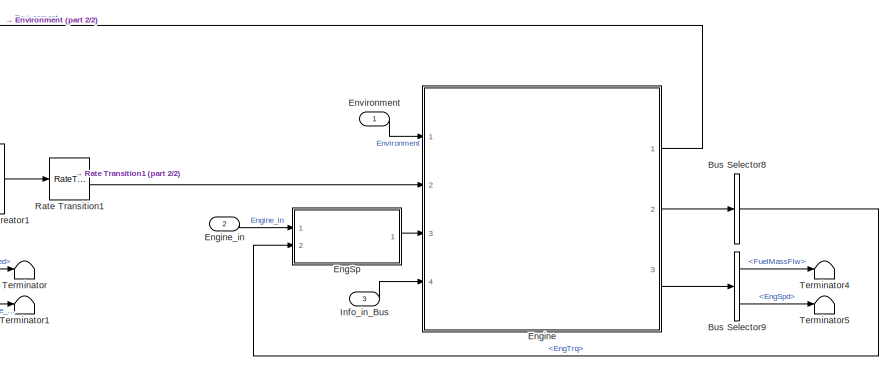
[diagram: root canvas - part 1/2, middle right region]
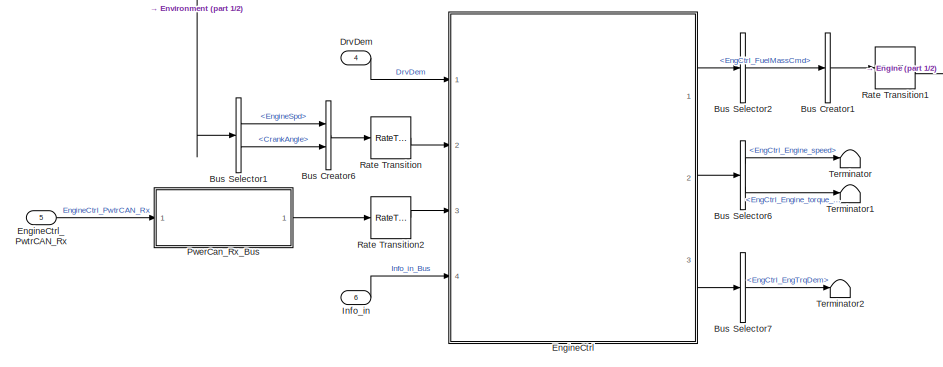
[diagram: root canvas - part 2/2, middle left region]
MODEL slx_d1ddcfe0b9f2
KIND model
BLOCK [BusCreator] Bus Creator1
  DisplayOption = bar
  InheritFromInputs = on
  Inputs = 1
  Ports = [1, 1]
BLOCK [BusCreator] Bus Creator6
  DisplayOption = bar
  InheritFromInputs = on
  Inputs = 2
  Ports = [2, 1]
BLOCK [BusSelector] Bus Selector1
  OutputAsBus = off
  OutputSignals = EngineSpd,CrankAngle
  Ports = [1, 2]
BLOCK [BusSelector] Bus Selector2
  OutputAsBus = off
  OutputSignals = EngCtrl_FuelMassCmd
  Ports = [1, 1]
BLOCK [BusSelector] Bus Selector6
  OutputAsBus = off
  OutputSignals = EngCtrl_Engine_speed,EngCtrl_Engine_torque_actual
  Ports = [1, 2]
BLOCK [BusSelector] Bus Selector7
  OutputAsBus = off
  OutputSignals = EngCtrl_EngTrqDem
  Ports = [1, 1]
BLOCK [BusSelector] Bus Selector8
  OutputAsBus = off
  OutputSignals = EngTrq
  Ports = [1, 1]
BLOCK [BusSelector] Bus Selector9
  OutputAsBus = off
  OutputSignals = FuelMassFlw,EngSpd
  Ports = [1, 2]
BLOCK [Inport] DrvDem
  AttributesFormatString = %<OutDataTypeStr>
  IconDisplay = Port number
  OutDataTypeStr = Bus: Driver_demand_Bus
  Port = 4
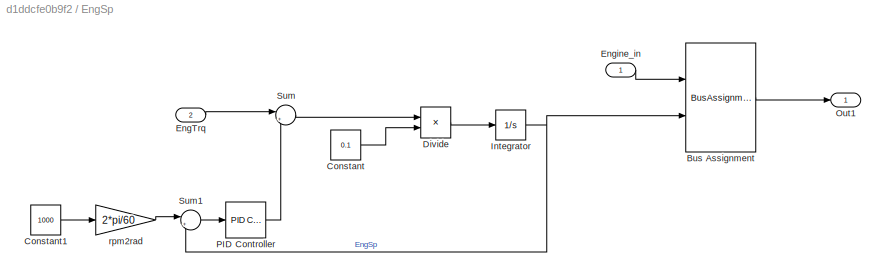
BLOCK [SubSystem] EngSp
  Ports = [2, 1]
  RequestExecContextInheritance = off
BLOCK [BusAssignment] EngSp/Bus Assignment
  AssignedSignals = EngSpd
  Ports = [2, 1]
BLOCK [Constant] EngSp/Constant
  Value = 0.1
BLOCK [Constant] EngSp/Constant1
  Value = 1000
BLOCK [Product] EngSp/Divide
  InputSameDT = off
  Inputs = */
  OutDataTypeStr = Inherit: Inherit via internal rule
  Ports = [2, 1]
  RndMeth = Floor
  SaturateOnIntegerOverflow = off
BLOCK [Inport] EngSp/EngTrq
  IconDisplay = Port number
  Port = 2
BLOCK [Inport] EngSp/Engine_in
  IconDisplay = Port number
BLOCK [Integrator] EngSp/Integrator
  InitialCondition = 100
  Ports = [1, 1]
BLOCK [Outport] EngSp/Out1
  IconDisplay = Port number
BLOCK [Reference] EngSp/PID Controller  REF=simulink/Continuous/PID Controller
  Ports = [1, 1]
  SourceBlock = simulink/Continuous/PID Controller
  SourceProductBaseCode = SL
  SourceProductName = Simulink
  SourceType = PID 1dof
BLOCK [Sum] EngSp/Sum
  IconShape = round
  InputSameDT = off
  Inputs = |++
  OutDataTypeStr = Inherit: Inherit via internal rule
  Ports = [2, 1]
  SaturateOnIntegerOverflow = off
BLOCK [Sum] EngSp/Sum1
  IconShape = round
  InputSameDT = off
  Inputs = |+-
  OutDataTypeStr = Inherit: Inherit via internal rule
  Ports = [2, 1]
  SaturateOnIntegerOverflow = off
BLOCK [Gain] EngSp/rpm2rad
  Gain = 2*pi/60
  OutDataTypeStr = Inherit: Inherit via internal rule
  ParamDataTypeStr = Inherit: Inherit via internal rule
  SaturateOnIntegerOverflow = off
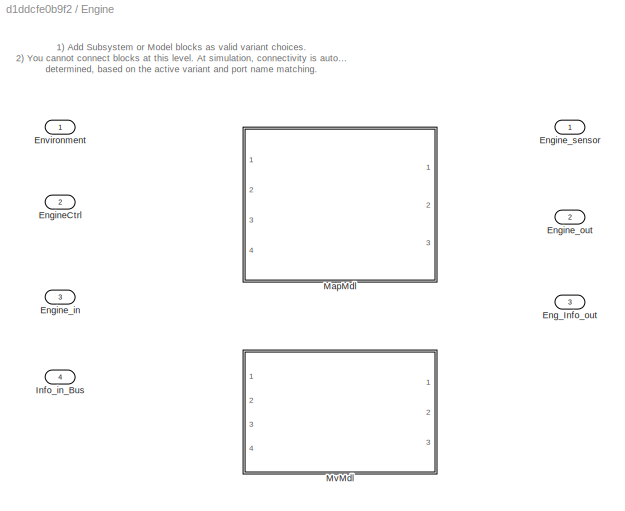
BLOCK [SubSystem] Engine
  Ports = [4, 3]
  RequestExecContextInheritance = off
  Variant = on
BLOCK [Outport] Engine/Eng_Info_out
  AttributesFormatString = %<OutDataTypeStr>
  IconDisplay = Port number
  OutDataTypeStr = Bus: Eng_Info_out_Bus
  Port = 3
BLOCK [Inport] Engine/EngineCtrl
  AttributesFormatString = %<OutDataTypeStr>
  IconDisplay = Port number
  OutDataTypeStr = Bus: EngineCtrl_Bus
  Port = 2
BLOCK [Inport] Engine/Engine_in
  AttributesFormatString = %<OutDataTypeStr>
  IconDisplay = Port number
  OutDataTypeStr = Bus: Engine_in_Bus
  Port = 3
BLOCK [Outport] Engine/Engine_out
  AttributesFormatString = %<OutDataTypeStr>
  IconDisplay = Port number
  OutDataTypeStr = Bus: Engine_out_Bus
  Port = 2
BLOCK [Outport] Engine/Engine_sensor
  AttributesFormatString = %<OutDataTypeStr>
  IconDisplay = Port number
  OutDataTypeStr = Bus: Engine_sensor_Bus
BLOCK [Inport] Engine/Environment
  AttributesFormatString = %<OutDataTypeStr>
  IconDisplay = Port number
  OutDataTypeStr = Bus: Environment_Bus
BLOCK [Inport] Engine/Info_in_Bus
  AttributesFormatString = %<OutDataTypeStr>
  IconDisplay = Port number
  OutDataTypeStr = Bus: Eng_Info_in_Bus
  Port = 4
BLOCK [ModelReference] Engine/MapMdl
  DisableCoverage = on
  ModelNameDialog = Engine_MapMdl_Ptbs_V1_18a.slx
  ModelReferenceVersion = 1.1343
  Ports = [4, 3]
  VariantControl = VarObj_Eng_MapMdl
BLOCK [ModelReference] Engine/MvMdl
  ModelNameDialog = Engine_MvMdl_Ptbs_V1.slx
  ModelReferenceVersion = 1.1331
  Ports = [4, 3]
  VariantControl = VarObj_Eng_MvMdl
BLOCK [ModelReference] EngineCtrl
  ModelNameDialog = EngineCtrl_V1_1.slx
  ModelReferenceVersion = 1.0.32
  Ports = [4, 3]
BLOCK [Inport] EngineCtrl_PwtrCAN_Rx
  AttributesFormatString = <%<OutDataTypeStr>>
  IconDisplay = Port number
  OutDataTypeStr = Bus: EngineCtrl_PwtrCAN_Rx_Bus
  Port = 5
BLOCK [Inport] Engine_in
  AttributesFormatString = %<OutDataTypeStr>
  IconDisplay = Port number
  OutDataTypeStr = Bus: Engine_in_Bus
  Port = 2
BLOCK [Inport] Environment
  AttributesFormatString = %<OutDataTypeStr>
  IconDisplay = Port number
  OutDataTypeStr = Bus: Environment_Bus
BLOCK [Inport] Info_in
  AttributesFormatString = %<OutDataTypeStr>
  IconDisplay = Port number
  OutDataTypeStr = Bus: EngineCtrl_Info_in_Bus
  Port = 6
BLOCK [Inport] Info_in_Bus
  AttributesFormatString = %<OutDataTypeStr>
  IconDisplay = Port number
  OutDataTypeStr = Bus: Eng_Info_in_Bus
  Port = 3
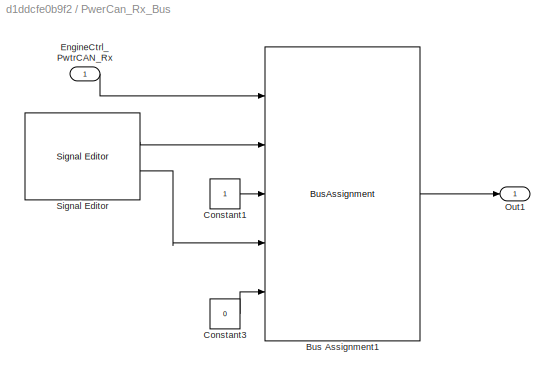
BLOCK [SubSystem] PwerCan_Rx_Bus
  Ports = [1, 1]
  RequestExecContextInheritance = off
BLOCK [BusAssignment] PwerCan_Rx_Bus/Bus Assignment1
  AssignedSignals = HEVCtrl_Engine_torque_request,HEVCtrl_IdleStop_preparation_request,HEVCtrl_IdleStop_request,HEVCtrl_IdleStop_status
  Ports = [5, 1]
BLOCK [Constant] PwerCan_Rx_Bus/Constant1
  OutDataTypeStr = Inherit: Inherit via back propagation
BLOCK [Constant] PwerCan_Rx_Bus/Constant3
  Value = 0
BLOCK [Inport] PwerCan_Rx_Bus/EngineCtrl_PwtrCAN_Rx
  IconDisplay = Port number
BLOCK [Outport] PwerCan_Rx_Bus/Out1
  IconDisplay = Port number
BLOCK [Reference] PwerCan_Rx_Bus/Signal Editor  REF=SignalEditorBlockLib/Signal Editor
  Ports = [0, 2]
  SourceBlock = SignalEditorBlockLib/Signal Editor
  SourceType = SignalEditor
  UserDataPersistent = on
BLOCK [RateTransition] Rate Transition
BLOCK [RateTransition] Rate Transition1
BLOCK [RateTransition] Rate Transition2
BLOCK [Terminator] Terminator
BLOCK [Terminator] Terminator1
BLOCK [Terminator] Terminator2
BLOCK [Terminator] Terminator4
BLOCK [Terminator] Terminator5
ANNOTATION Engine: 1) Add Subsystem or Model blocks as valid variant choices. 2) You cannot connect blocks at this level. At simulation, connectivity is automatically determined, based on the active variant and port name matching.
LINE Bus Creator1:1 -> Rate Transition1:1
LINE Bus Creator6:1 -> Rate Transition:1
LINE Bus Selector1:1 -> Bus Creator6:1
LINE Bus Selector1:2 -> Bus Creator6:2
LINE Bus Selector2:1 -> Bus Creator1:1
LINE Bus Selector6:1 -> Terminator:1
LINE Bus Selector6:2 -> Terminator1:1
LINE Bus Selector7:1 -> Terminator2:1
LINE Bus Selector8:1 -> EngSp:2
LINE Bus Selector9:1 -> Terminator4:1
LINE Bus Selector9:2 -> Terminator5:1
LINE DrvDem:1 -> EngineCtrl:1
LINE EngSp/Bus Assignment:1 -> EngSp/Out1:1
LINE EngSp/Constant1:1 -> EngSp/rpm2rad:1
LINE EngSp/Constant:1 -> EngSp/Divide:2
LINE EngSp/Divide:1 -> EngSp/Integrator:1
LINE EngSp/EngTrq:1 -> EngSp/Sum:1
LINE EngSp/Engine_in:1 -> EngSp/Bus Assignment:1
NET EngSp/Integrator:1 -> EngSp/Bus Assignment:2, EngSp/Sum1:2
LINE EngSp/PID Controller:1 -> EngSp/Sum:2
LINE EngSp/Sum1:1 -> EngSp/PID Controller:1
LINE EngSp/Sum:1 -> EngSp/Divide:1
LINE EngSp/rpm2rad:1 -> EngSp/Sum1:1
LINE EngSp:1 -> Engine:3
LINE Engine:1 -> Bus Selector1:1
LINE Engine:2 -> Bus Selector8:1
LINE Engine:3 -> Bus Selector9:1
LINE EngineCtrl:1 -> Bus Selector2:1
LINE EngineCtrl:2 -> Bus Selector6:1
LINE EngineCtrl:3 -> Bus Selector7:1
LINE EngineCtrl_PwtrCAN_Rx:1 -> PwerCan_Rx_Bus:1
LINE Engine_in:1 -> EngSp:1
LINE Environment:1 -> Engine:1
LINE Info_in:1 -> EngineCtrl:4
LINE Info_in_Bus:1 -> Engine:4
LINE PwerCan_Rx_Bus/Bus Assignment1:1 -> PwerCan_Rx_Bus/Out1:1
LINE PwerCan_Rx_Bus/Constant1:1 -> PwerCan_Rx_Bus/Bus Assignment1:3
LINE PwerCan_Rx_Bus/Constant3:1 -> PwerCan_Rx_Bus/Bus Assignment1:5
LINE PwerCan_Rx_Bus/EngineCtrl_PwtrCAN_Rx:1 -> PwerCan_Rx_Bus/Bus Assignment1:1
LINE PwerCan_Rx_Bus/Signal Editor:1 -> PwerCan_Rx_Bus/Bus Assignment1:2
LINE PwerCan_Rx_Bus/Signal Editor:2 -> PwerCan_Rx_Bus/Bus Assignment1:4
LINE PwerCan_Rx_Bus:1 -> Rate Transition2:1
LINE Rate Transition1:1 -> Engine:2
LINE Rate Transition2:1 -> EngineCtrl:3
LINE Rate Transition:1 -> EngineCtrl:2
note: NET lines group one-source signal fan-out (src -> all destinations, sorted); 1:1 wires keep LINE
